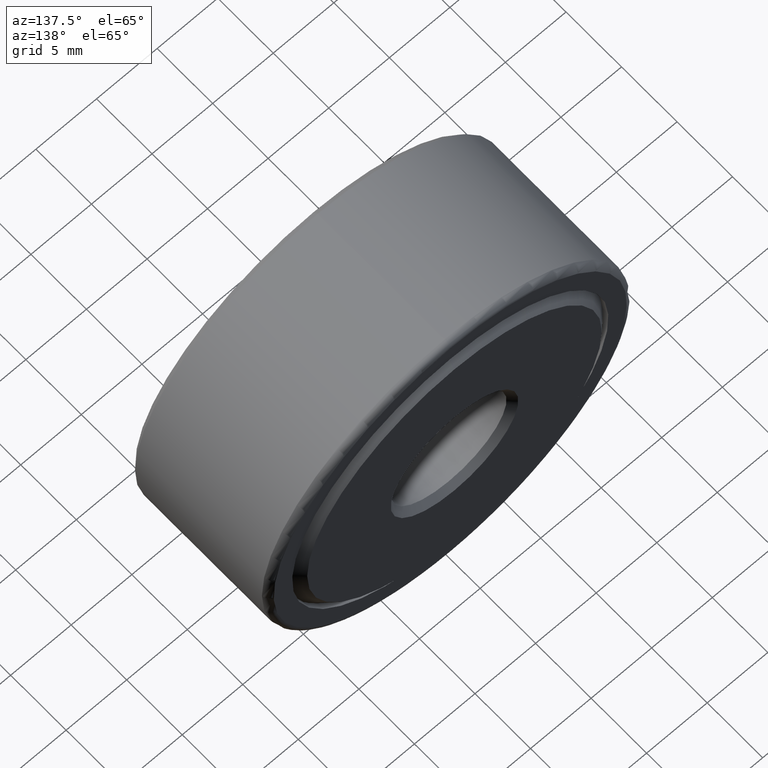
[diagram: clean part render]
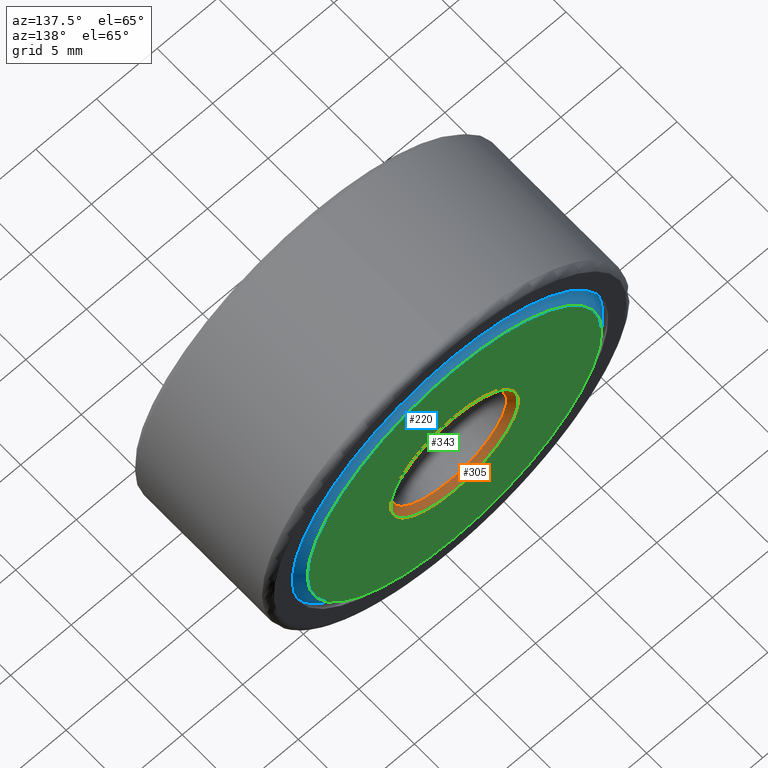
[diagram: same view with three faces highlighted in distinct colors, each labeled with its STEP entity id]
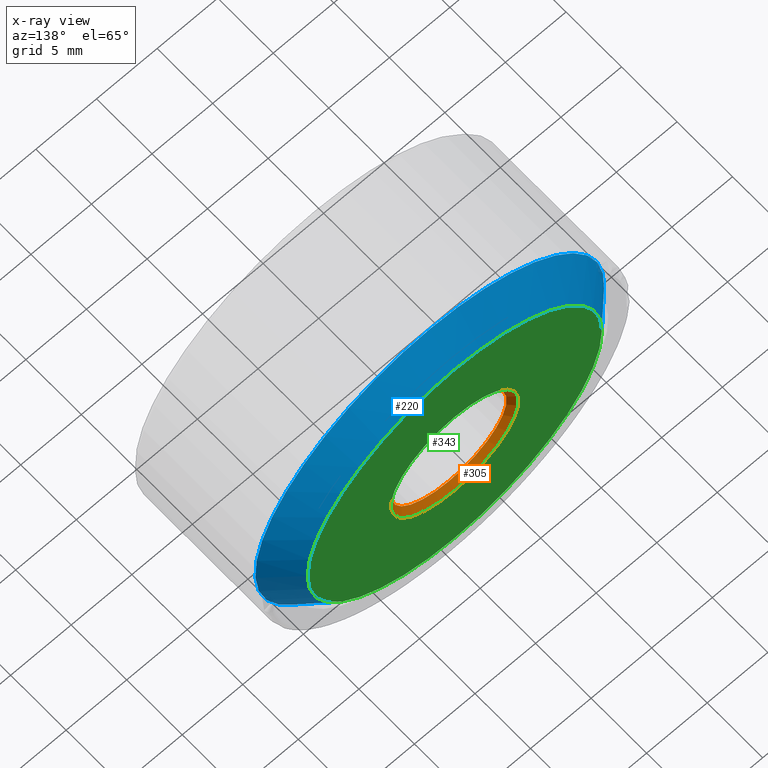
[diagram: x-ray of the same camera — body ghosted, the three highlighted faces saturated]
A machine part, auxiliary view with three faces highlighted in distinct colors.
The next image is the same camera in x-ray (body ghosted, the three faces saturated) — at least one of them is partly hidden behind the body in this view.
Their STEP definitions:

[orange] entity #305 — the highlighted conical surface has half-angle 45 deg.
#26 = AXIS2_PLACEMENT_3D ( 'NONE', #313, #360, #195 ) ;
#39 = ORIENTED_EDGE ( 'NONE', *, *, #492, .F. ) ;
#45 = EDGE_CURVE ( 'NONE', #440, #440, #261, .T. ) ;
#59 = CARTESIAN_POINT ( 'NONE',  ( 0.0000000000000000000, 0.4799999999999998200, 0.1875000000000000600 ) ) ;
#69 = CIRCLE ( 'NONE', #507, 0.1875000000000000600 ) ;
#143 = DIRECTION ( 'NONE',  ( 0.0000000000000000000, 0.0000000000000000000, 1.000000000000000000 ) ) ;
#175 = FACE_BOUND ( 'NONE', #538, .T. ) ;
#195 = DIRECTION ( 'NONE',  ( 0.0000000000000000000, 0.0000000000000000000, 1.000000000000000000 ) ) ;
#222 = DIRECTION ( 'NONE',  ( -0.0000000000000000000, 1.000000000000000000, -0.0000000000000000000 ) ) ;
#230 = FACE_OUTER_BOUND ( 'NONE', #383, .T. ) ;
#261 = CIRCLE ( 'NONE', #298, 0.2075000000000001000 ) ;
#296 = VERTEX_POINT ( 'NONE', #59 ) ;
#298 = AXIS2_PLACEMENT_3D ( 'NONE', #301, #222, #580 ) ;
#301 = CARTESIAN_POINT ( 'NONE',  ( 0.0000000000000000000, 0.4999999999999999400, 0.0000000000000000000 ) ) ;
#305 = ADVANCED_FACE ( 'NONE', ( #230, #175 ), #541, .F. ) ;
#313 = CARTESIAN_POINT ( 'NONE',  ( 0.0000000000000000000, 0.4799999999999998200, 0.0000000000000000000 ) ) ;
#360 = DIRECTION ( 'NONE',  ( -0.0000000000000000000, 1.000000000000000000, -0.0000000000000000000 ) ) ;
#383 = EDGE_LOOP ( 'NONE', ( #531 ) ) ;
#440 = VERTEX_POINT ( 'NONE', #517 ) ;
#464 = DIRECTION ( 'NONE',  ( -0.0000000000000000000, 1.000000000000000000, -0.0000000000000000000 ) ) ;
#492 = EDGE_CURVE ( 'NONE', #296, #296, #69, .T. ) ;
#507 = AXIS2_PLACEMENT_3D ( 'NONE', #562, #464, #143 ) ;
#517 = CARTESIAN_POINT ( 'NONE',  ( 0.0000000000000000000, 0.4999999999999999400, 0.2075000000000001000 ) ) ;
#531 = ORIENTED_EDGE ( 'NONE', *, *, #45, .T. ) ;
#538 = EDGE_LOOP ( 'NONE', ( #39 ) ) ;
#541 = CONICAL_SURFACE ( 'NONE', #26, 0.1875000000000000600, 0.7853981633974466100 ) ;
#562 = CARTESIAN_POINT ( 'NONE',  ( 0.0000000000000000000, 0.4799999999999998200, 0.0000000000000000000 ) ) ;
#580 = DIRECTION ( 'NONE',  ( 0.0000000000000000000, 0.0000000000000000000, 1.000000000000000000 ) ) ;

[blue] entity #220 — the highlighted conical surface has half-angle 45 deg.
#30 = CARTESIAN_POINT ( 'NONE',  ( 0.0000000000000000000, 0.4120000000000002500, 0.0000000000000000000 ) ) ;
#46 = FACE_OUTER_BOUND ( 'NONE', #83, .T. ) ;
#53 = VERTEX_POINT ( 'NONE', #154 ) ;
#83 = EDGE_LOOP ( 'NONE', ( #254 ) ) ;
#129 = FACE_BOUND ( 'NONE', #509, .T. ) ;
#139 = AXIS2_PLACEMENT_3D ( 'NONE', #468, #149, #206 ) ;
#149 = DIRECTION ( 'NONE',  ( -0.0000000000000000000, 1.000000000000000000, -0.0000000000000000000 ) ) ;
#154 = CARTESIAN_POINT ( 'NONE',  ( 0.0000000000000000000, 0.5000000000000000000, 0.4787499999999999000 ) ) ;
#206 = DIRECTION ( 'NONE',  ( 0.0000000000000000000, 0.0000000000000000000, 1.000000000000000000 ) ) ;
#220 = ADVANCED_FACE ( 'NONE', ( #46, #129 ), #264, .T. ) ;
#226 = DIRECTION ( 'NONE',  ( 0.0000000000000000000, 0.0000000000000000000, -1.000000000000000000 ) ) ;
#254 = ORIENTED_EDGE ( 'NONE', *, *, #273, .T. ) ;
#264 = CONICAL_SURFACE ( 'NONE', #453, 0.4787499999999999000, 0.7853981633974490600 ) ;
#273 = EDGE_CURVE ( 'NONE', #398, #398, #444, .T. ) ;
#358 = DIRECTION ( 'NONE',  ( -0.0000000000000000000, 1.000000000000000000, -0.0000000000000000000 ) ) ;
#398 = VERTEX_POINT ( 'NONE', #467 ) ;
#444 = CIRCLE ( 'NONE', #479, 0.5667499999999997500 ) ;
#447 = DIRECTION ( 'NONE',  ( 0.0000000000000000000, 0.0000000000000000000, 1.000000000000000000 ) ) ;
#450 = CARTESIAN_POINT ( 'NONE',  ( 0.0000000000000000000, 0.5000000000000000000, 0.0000000000000000000 ) ) ;
#453 = AXIS2_PLACEMENT_3D ( 'NONE', #450, #590, #226 ) ;
#467 = CARTESIAN_POINT ( 'NONE',  ( 0.0000000000000000000, 0.4120000000000002500, 0.5667499999999997500 ) ) ;
#468 = CARTESIAN_POINT ( 'NONE',  ( 0.0000000000000000000, 0.5000000000000000000, 0.0000000000000000000 ) ) ;
#479 = AXIS2_PLACEMENT_3D ( 'NONE', #30, #358, #447 ) ;
#509 = EDGE_LOOP ( 'NONE', ( #529 ) ) ;
#529 = ORIENTED_EDGE ( 'NONE', *, *, #598, .F. ) ;
#561 = CIRCLE ( 'NONE', #139, 0.4787499999999999000 ) ;
#590 = DIRECTION ( 'NONE',  ( 0.0000000000000000000, -1.000000000000000000, 0.0000000000000000000 ) ) ;
#598 = EDGE_CURVE ( 'NONE', #53, #53, #561, .T. ) ;

[green] entity #343 — the highlighted planar face has unit normal (-0, 1, 0).
#10 = ORIENTED_EDGE ( 'NONE', *, *, #45, .F. ) ;
#36 = CARTESIAN_POINT ( 'NONE',  ( 1.258916126112564200E-016, 0.5000000000000000000, 0.0000000000000000000 ) ) ;
#45 = EDGE_CURVE ( 'NONE', #440, #440, #261, .T. ) ;
#53 = VERTEX_POINT ( 'NONE', #154 ) ;
#107 = EDGE_LOOP ( 'NONE', ( #192 ) ) ;
#138 = PLANE ( 'NONE',  #233 ) ;
#139 = AXIS2_PLACEMENT_3D ( 'NONE', #468, #149, #206 ) ;
#149 = DIRECTION ( 'NONE',  ( -0.0000000000000000000, 1.000000000000000000, -0.0000000000000000000 ) ) ;
#154 = CARTESIAN_POINT ( 'NONE',  ( 0.0000000000000000000, 0.5000000000000000000, 0.4787499999999999000 ) ) ;
#190 = DIRECTION ( 'NONE',  ( 0.0000000000000000000, 0.0000000000000000000, 1.000000000000000000 ) ) ;
#192 = ORIENTED_EDGE ( 'NONE', *, *, #598, .T. ) ;
#206 = DIRECTION ( 'NONE',  ( 0.0000000000000000000, 0.0000000000000000000, 1.000000000000000000 ) ) ;
#222 = DIRECTION ( 'NONE',  ( -0.0000000000000000000, 1.000000000000000000, -0.0000000000000000000 ) ) ;
#233 = AXIS2_PLACEMENT_3D ( 'NONE', #36, #553, #190 ) ;
#258 = FACE_OUTER_BOUND ( 'NONE', #107, .T. ) ;
#261 = CIRCLE ( 'NONE', #298, 0.2075000000000001000 ) ;
#298 = AXIS2_PLACEMENT_3D ( 'NONE', #301, #222, #580 ) ;
#301 = CARTESIAN_POINT ( 'NONE',  ( 0.0000000000000000000, 0.4999999999999999400, 0.0000000000000000000 ) ) ;
#343 = ADVANCED_FACE ( 'NONE', ( #258, #525 ), #138, .T. ) ;
#440 = VERTEX_POINT ( 'NONE', #517 ) ;
#441 = EDGE_LOOP ( 'NONE', ( #10 ) ) ;
#468 = CARTESIAN_POINT ( 'NONE',  ( 0.0000000000000000000, 0.5000000000000000000, 0.0000000000000000000 ) ) ;
#517 = CARTESIAN_POINT ( 'NONE',  ( 0.0000000000000000000, 0.4999999999999999400, 0.2075000000000001000 ) ) ;
#525 = FACE_BOUND ( 'NONE', #441, .T. ) ;
#553 = DIRECTION ( 'NONE',  ( -0.0000000000000000000, 1.000000000000000000, 0.0000000000000000000 ) ) ;
#561 = CIRCLE ( 'NONE', #139, 0.4787499999999999000 ) ;
#580 = DIRECTION ( 'NONE',  ( 0.0000000000000000000, 0.0000000000000000000, 1.000000000000000000 ) ) ;
#598 = EDGE_CURVE ( 'NONE', #53, #53, #561, .T. ) ;